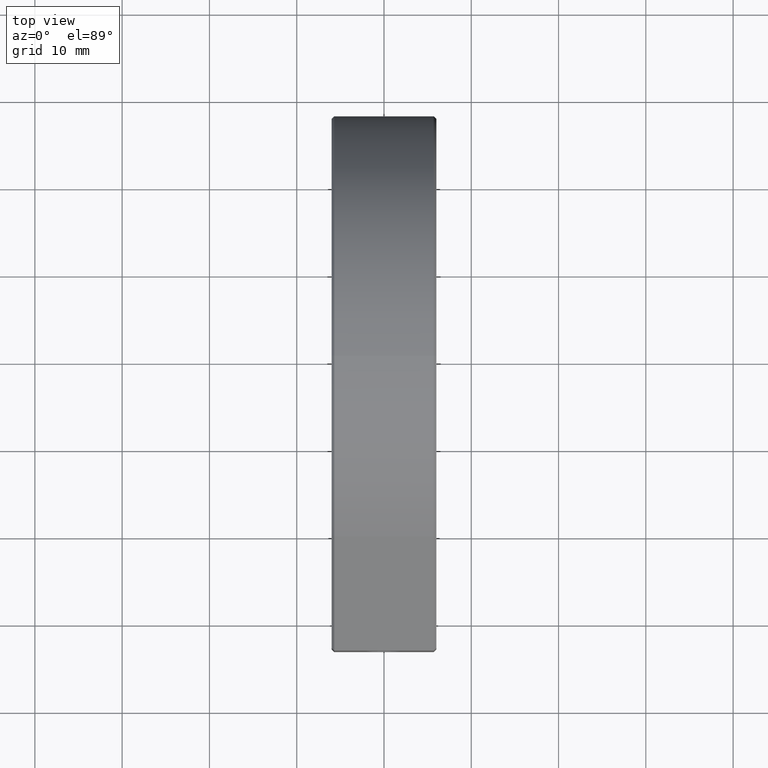
[diagram: clean part render]
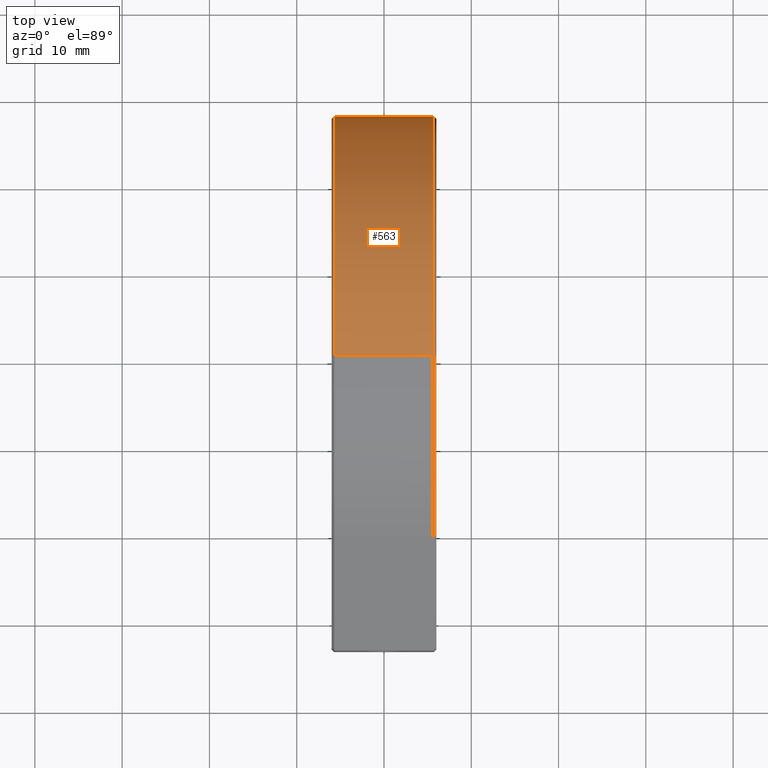
[diagram: same view with one face highlighted and labeled with its STEP entity id]
A machine part, top view. The second image highlights one B-rep face of the part: STEP entity #563.
In plain terms, the highlighted cylindrical surface (partial cylindrical patch) has radius 27.95 mm, axis along (-1, -0, -0).
Its self-contained STEP definition (entity closure, byte-faithful):
#12 = AXIS2_PLACEMENT_3D ( 'NONE', #1167, #1674, #492 ) ;
#36 = AXIS2_PLACEMENT_3D ( 'NONE', #625, #513, #522 ) ;
#93 = LINE ( 'NONE', #1721, #156 ) ;
#110 = ORIENTED_EDGE ( 'NONE', *, *, #1305, .T. ) ;
#156 = VECTOR ( 'NONE', #635, 1000.000000000000000 ) ;
#172 = DIRECTION ( 'NONE',  ( 0.0000000000000000000, 0.0000000000000000000, -1.000000000000000000 ) ) ;
#232 = VERTEX_POINT ( 'NONE', #1714 ) ;
#265 = LINE ( 'NONE', #371, #1059 ) ;
#307 = EDGE_CURVE ( 'NONE', #707, #851, #265, .T. ) ;
#371 = CARTESIAN_POINT ( 'NONE',  ( 6.000000000000000000, 3.422887803616852597E-15, -27.95000000000000284 ) ) ;
#441 = CIRCLE ( 'NONE', #1648, 27.95000000000000284 ) ;
#458 = EDGE_CURVE ( 'NONE', #232, #707, #441, .T. ) ;
#492 = DIRECTION ( 'NONE',  ( 0.0000000000000000000, 0.0000000000000000000, 1.000000000000000000 ) ) ;
#506 = ORIENTED_EDGE ( 'NONE', *, *, #458, .T. ) ;
#513 = DIRECTION ( 'NONE',  ( 1.000000000000000000, -0.0000000000000000000, -0.0000000000000000000 ) ) ;
#522 = DIRECTION ( 'NONE',  ( 0.0000000000000000000, 0.0000000000000000000, -1.000000000000000000 ) ) ;
#562 = CARTESIAN_POINT ( 'NONE',  ( 5.700000000000012612, 0.0000000000000000000, 0.0000000000000000000 ) ) ;
#563 = ADVANCED_FACE ( 'NONE', ( #610 ), #754, .T. ) ;
#610 = FACE_OUTER_BOUND ( 'NONE', #1523, .T. ) ;
#625 = CARTESIAN_POINT ( 'NONE',  ( -5.699999999999991296, 0.0000000000000000000, 0.0000000000000000000 ) ) ;
#635 = DIRECTION ( 'NONE',  ( -1.000000000000000000, -0.0000000000000000000, -0.0000000000000000000 ) ) ;
#707 = VERTEX_POINT ( 'NONE', #813 ) ;
#711 = CIRCLE ( 'NONE', #36, 27.95000000000000284 ) ;
#754 = CYLINDRICAL_SURFACE ( 'NONE', #12, 27.95000000000000284 ) ;
#786 = DIRECTION ( 'NONE',  ( -1.000000000000000000, -0.0000000000000000000, -0.0000000000000000000 ) ) ;
#806 = ORIENTED_EDGE ( 'NONE', *, *, #307, .T. ) ;
#813 = CARTESIAN_POINT ( 'NONE',  ( 5.700000000000012612, 3.422887803616852597E-15, -27.95000000000000284 ) ) ;
#851 = VERTEX_POINT ( 'NONE', #1639 ) ;
#1004 = ORIENTED_EDGE ( 'NONE', *, *, #1309, .F. ) ;
#1059 = VECTOR ( 'NONE', #786, 1000.000000000000000 ) ;
#1167 = CARTESIAN_POINT ( 'NONE',  ( 6.000000000000000000, 0.0000000000000000000, 0.0000000000000000000 ) ) ;
#1305 = EDGE_CURVE ( 'NONE', #851, #1478, #711, .T. ) ;
#1309 = EDGE_CURVE ( 'NONE', #232, #1478, #93, .T. ) ;
#1360 = DIRECTION ( 'NONE',  ( -1.000000000000000000, 0.0000000000000000000, 0.0000000000000000000 ) ) ;
#1478 = VERTEX_POINT ( 'NONE', #1718 ) ;
#1523 = EDGE_LOOP ( 'NONE', ( #506, #806, #110, #1004 ) ) ;
#1639 = CARTESIAN_POINT ( 'NONE',  ( -5.699999999999991296, 0.0000000000000000000, -27.95000000000000284 ) ) ;
#1648 = AXIS2_PLACEMENT_3D ( 'NONE', #562, #1360, #172 ) ;
#1674 = DIRECTION ( 'NONE',  ( -1.000000000000000000, -0.0000000000000000000, -0.0000000000000000000 ) ) ;
#1714 = CARTESIAN_POINT ( 'NONE',  ( 5.700000000000012612, 0.0000000000000000000, 27.95000000000000284 ) ) ;
#1718 = CARTESIAN_POINT ( 'NONE',  ( -5.699999999999991296, 3.422887803616852597E-15, 27.95000000000000284 ) ) ;
#1721 = CARTESIAN_POINT ( 'NONE',  ( 6.000000000000000000, 0.0000000000000000000, 27.95000000000000284 ) ) ;